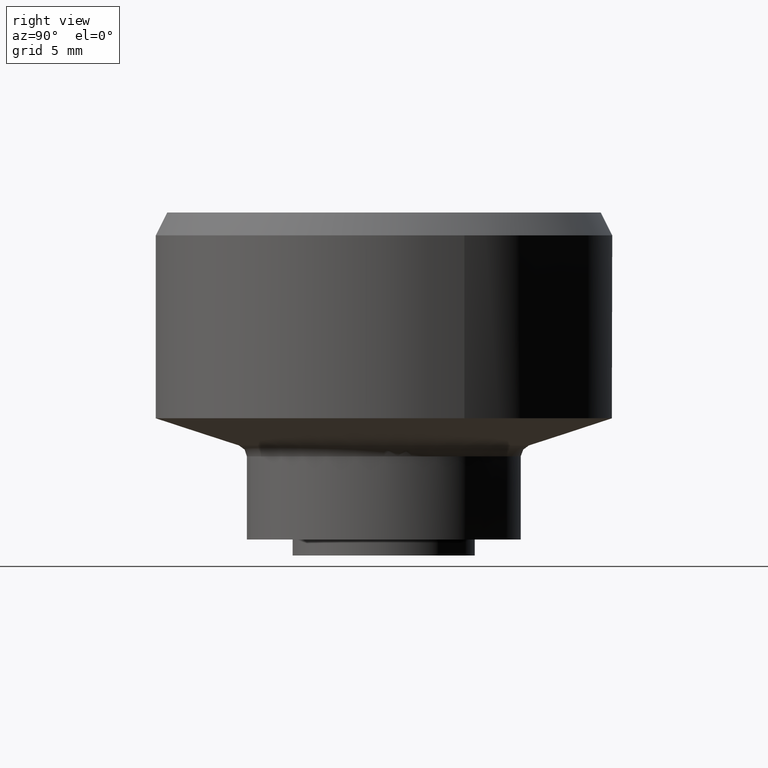
[diagram: clean part render]
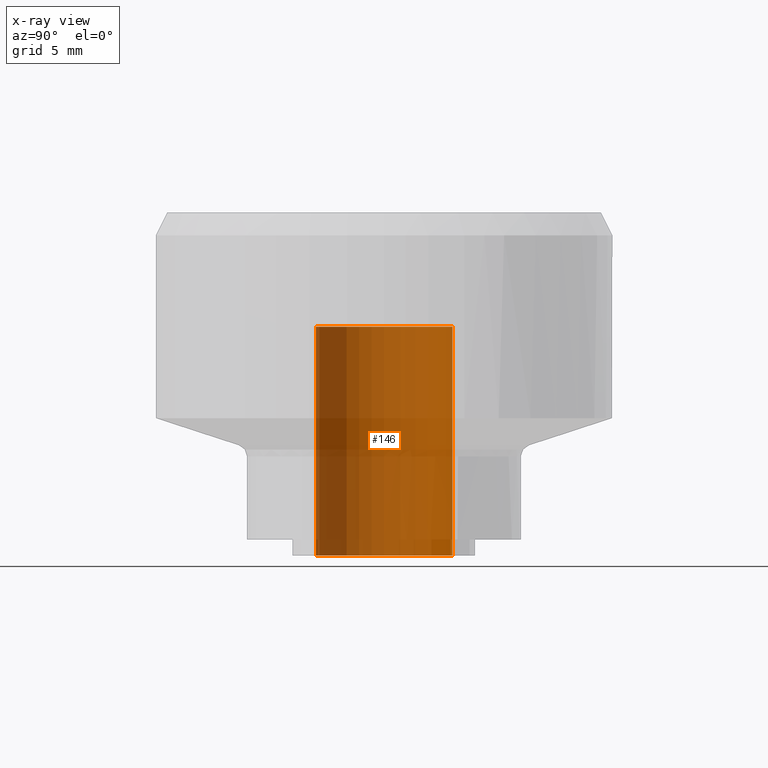
[diagram: x-ray — body ghosted, one internal face saturated and labeled with its STEP entity id]
A machine part, right view, then the same camera in x-ray: the body is ghosted and one INTERNAL B-rep face — a face not visible from any outside direction — is saturated and labeled: STEP entity #146.
In plain terms, the highlighted face is a freeform B-spline surface patch.
Its self-contained STEP definition (entity closure, byte-faithful):
#44=CARTESIAN_POINT('',(0.354102703970275,-2.979028579091000,10.250000000000002));
#45=CARTESIAN_POINT('',(0.268844185913933,-2.989162846345817,10.250000000000005));
#46=CARTESIAN_POINT('',(0.183145618604571,-2.994404395265600,10.250000000000000));
#47=CARTESIAN_POINT('',(-2.811258776661029,-3.177550013870171,10.250000000000002));
#48=CARTESIAN_POINT('',(-2.994404395265600,-0.183145618604571,10.250000000000000));
#49=CARTESIAN_POINT('',(-3.177550013870171,2.811258776661029,10.250000000000002));
#50=CARTESIAN_POINT('',(-0.183145618604571,2.994404395265600,10.250000000000000));
#51=CARTESIAN_POINT('',(0.354102703970275,-2.979028579091000,-0.256250000000001));
#52=CARTESIAN_POINT('',(0.268844185913933,-2.989162846345817,-0.256250000000001));
#53=CARTESIAN_POINT('',(0.183145618604571,-2.994404395265600,-0.256250000000001));
#54=CARTESIAN_POINT('',(-2.811258776661029,-3.177550013870171,-0.256250000000001));
#55=CARTESIAN_POINT('',(-2.994404395265600,-0.183145618604571,-0.256250000000001));
#56=CARTESIAN_POINT('',(-3.177550013870171,2.811258776661029,-0.256250000000001));
#57=CARTESIAN_POINT('',(-0.183145618604571,2.994404395265600,-0.256250000000001));
#65=(BOUNDED_SURFACE()B_SPLINE_SURFACE(2,1,((#44,#51),(#45,#52),(#46,#53),(#47,#54),(#48,#55),(#49,#56),(#50,#57)),.UNSPECIFIED.,.F.,.F.,.U.)B_SPLINE_SURFACE_WITH_KNOTS((3,2,2,3),(2,2),(0.0,0.198822509939086,5.169385258416225,10.139948006893370),(0.0,10.506250000000000),.UNSPECIFIED.)GEOMETRIC_REPRESENTATION_ITEM()RATIONAL_B_SPLINE_SURFACE(((0.977505800795127,0.977505800795127),(0.988284271247462,0.988284271247462),(1.0,1.0),(0.707106781186548,0.707106781186548),(1.0,1.0),(0.707106781186548,0.707106781186548),(1.0,1.0)))REPRESENTATION_ITEM('')SURFACE());
#66=CARTESIAN_POINT('',(0.354102703986130,-2.979028579089114,2.839428E-017));
#67=VERTEX_POINT('',#66);
#68=CARTESIAN_POINT('',(-3.0,0.0,0.0));
#69=VERTEX_POINT('',#68);
#70=CARTESIAN_POINT('',(0.354102703986130,-2.979028579089114,2.839428E-017));
#71=CARTESIAN_POINT('',(0.177672358971753,-2.999999999999999,0.0));
#72=CARTESIAN_POINT('',(0.0,-3.0,0.0));
#73=CARTESIAN_POINT('',(-3.0,-3.0,0.0));
#74=CARTESIAN_POINT('',(-3.0,0.0,0.0));
#82=(BOUNDED_CURVE()B_SPLINE_CURVE(2,(#70,#71,#72,#73,#74),.UNSPECIFIED.,.F.,.U.)B_SPLINE_CURVE_WITH_KNOTS((3,2,3),(0.229562473513845,0.250000000000000,0.500000000000000),.UNSPECIFIED.)CURVE()GEOMETRIC_REPRESENTATION_ITEM()RATIONAL_B_SPLINE_CURVE((0.956026754184360,0.976055948331540,1.0,0.707106781186548,1.0))REPRESENTATION_ITEM(''));
#83=EDGE_CURVE('',#67,#69,#82,.T.);
#84=ORIENTED_EDGE('',*,*,#83,.F.);
#85=CARTESIAN_POINT('',(0.354102703986130,-2.979028579089114,9.999999999999998));
#86=VERTEX_POINT('',#85);
#87=CARTESIAN_POINT('',(0.354102703986130,-2.979028579089114,9.999999999999998));
#88=CARTESIAN_POINT('',(0.354102703986130,-2.979028579089114,2.839428E-017));
#89=QUASI_UNIFORM_CURVE('',1,(#87,#88),.UNSPECIFIED.,.F.,.U.);
#90=EDGE_CURVE('',#86,#67,#89,.T.);
#91=ORIENTED_EDGE('',*,*,#90,.F.);
#92=CARTESIAN_POINT('',(-3.0,0.0,10.0));
#93=VERTEX_POINT('',#92);
#94=CARTESIAN_POINT('',(0.354102703986130,-2.979028579089114,9.999999999999998));
#95=CARTESIAN_POINT('',(0.177672358971753,-2.999999999999999,10.0));
#96=CARTESIAN_POINT('',(0.0,-3.0,10.0));
#97=CARTESIAN_POINT('',(-3.0,-3.0,10.000000000000002));
#98=CARTESIAN_POINT('',(-3.0,0.0,10.0));
#106=(BOUNDED_CURVE()B_SPLINE_CURVE(2,(#94,#95,#96,#97,#98),.UNSPECIFIED.,.F.,.U.)B_SPLINE_CURVE_WITH_KNOTS((3,2,3),(0.229562473513845,0.250000000000000,0.500000000000000),.UNSPECIFIED.)CURVE()GEOMETRIC_REPRESENTATION_ITEM()RATIONAL_B_SPLINE_CURVE((0.956026754184360,0.976055948331540,1.0,0.707106781186548,1.0))REPRESENTATION_ITEM(''));
#107=EDGE_CURVE('',#86,#93,#106,.T.);
#108=ORIENTED_EDGE('',*,*,#107,.T.);
#109=CARTESIAN_POINT('',(-0.183144116693370,2.994404487125669,10.0));
#110=VERTEX_POINT('',#109);
#111=CARTESIAN_POINT('',(-3.0,0.0,10.0));
#112=CARTESIAN_POINT('',(-3.000000000000000,2.822119618859663,10.0));
#113=CARTESIAN_POINT('',(-0.183144116693370,2.994404487125669,10.000000000000002));
#121=(BOUNDED_CURVE()B_SPLINE_CURVE(2,(#111,#112,#113),.UNSPECIFIED.,.F.,.U.)B_SPLINE_CURVE_WITH_KNOTS((3,3),(0.500000000000000,0.739333048786716),.UNSPECIFIED.)CURVE()GEOMETRIC_REPRESENTATION_ITEM()RATIONAL_B_SPLINE_CURVE((1.0,0.719603891889687,0.976072227155141))REPRESENTATION_ITEM(''));
#122=EDGE_CURVE('',#93,#110,#121,.T.);
#123=ORIENTED_EDGE('',*,*,#122,.T.);
#124=CARTESIAN_POINT('',(-0.183144097963307,2.994404488271229,1.193490E-015));
#125=VERTEX_POINT('',#124);
#126=CARTESIAN_POINT('',(-0.183144116693370,2.994404487125669,10.0));
#127=CARTESIAN_POINT('',(-0.183144097963307,2.994404488271229,1.193490E-015));
#128=QUASI_UNIFORM_CURVE('',1,(#126,#127),.UNSPECIFIED.,.F.,.U.);
#129=EDGE_CURVE('',#110,#125,#128,.T.);
#130=ORIENTED_EDGE('',*,*,#129,.T.);
#131=CARTESIAN_POINT('',(-3.0,0.0,0.0));
#132=CARTESIAN_POINT('',(-3.000000000000000,2.822119636545066,0.0));
#133=CARTESIAN_POINT('',(-0.183144097963307,2.994404488271230,1.193490E-015));
#141=(BOUNDED_CURVE()B_SPLINE_CURVE(2,(#131,#132,#133),.UNSPECIFIED.,.F.,.U.)B_SPLINE_CURVE_WITH_KNOTS((3,3),(0.500000000000000,0.739333049866000),.UNSPECIFIED.)CURVE()GEOMETRIC_REPRESENTATION_ITEM()RATIONAL_B_SPLINE_CURVE((1.0,0.719603890625227,0.976072229468254))REPRESENTATION_ITEM(''));
#142=EDGE_CURVE('',#69,#125,#141,.T.);
#143=ORIENTED_EDGE('',*,*,#142,.F.);
#144=EDGE_LOOP('',(#84,#91,#108,#123,#130,#143));
#145=FACE_OUTER_BOUND('',#144,.T.);
#146=ADVANCED_FACE('',(#145),#65,.T.);